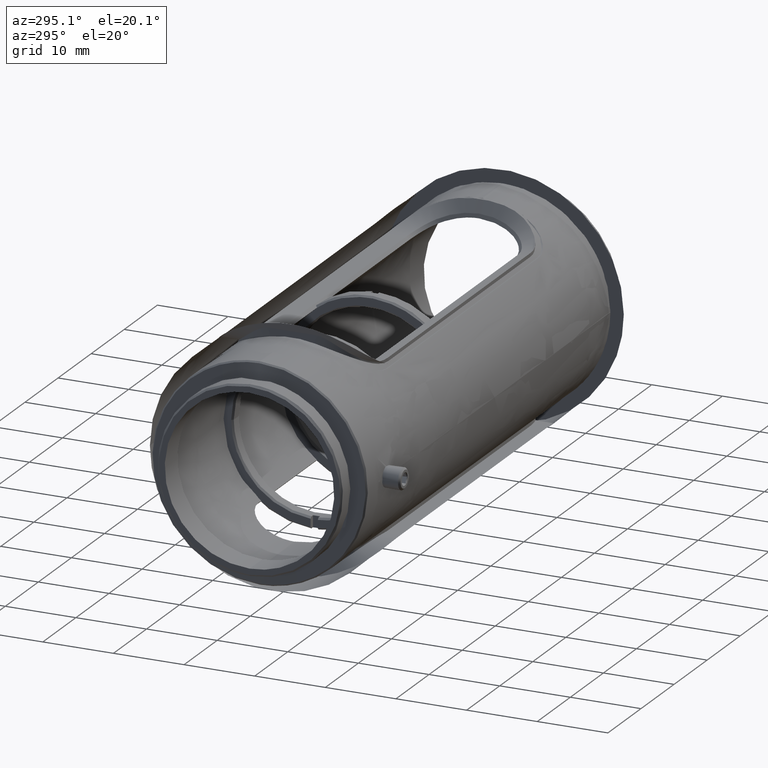
[diagram: clean part render]
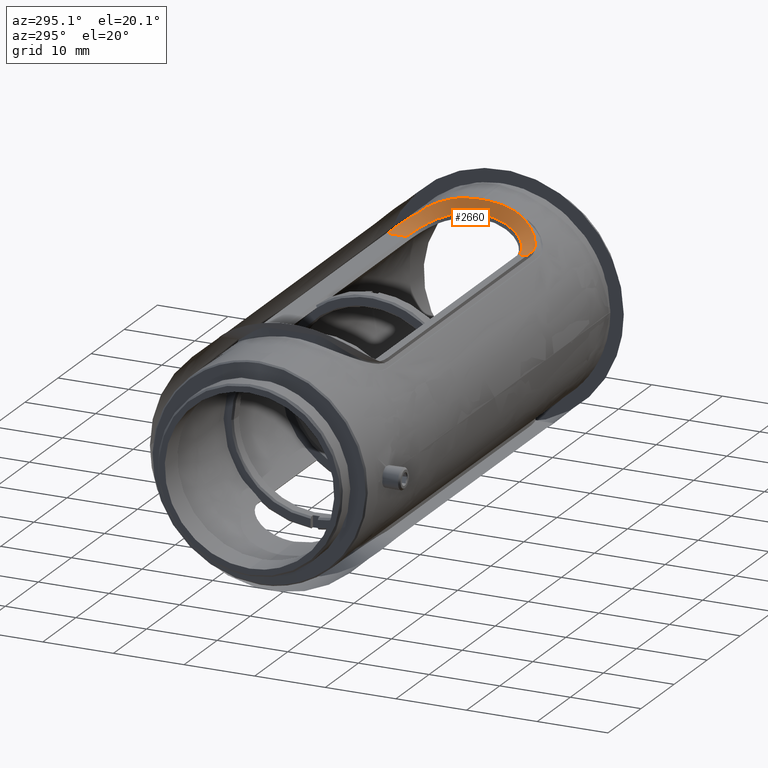
[diagram: same view with one face highlighted and labeled with its STEP entity id]
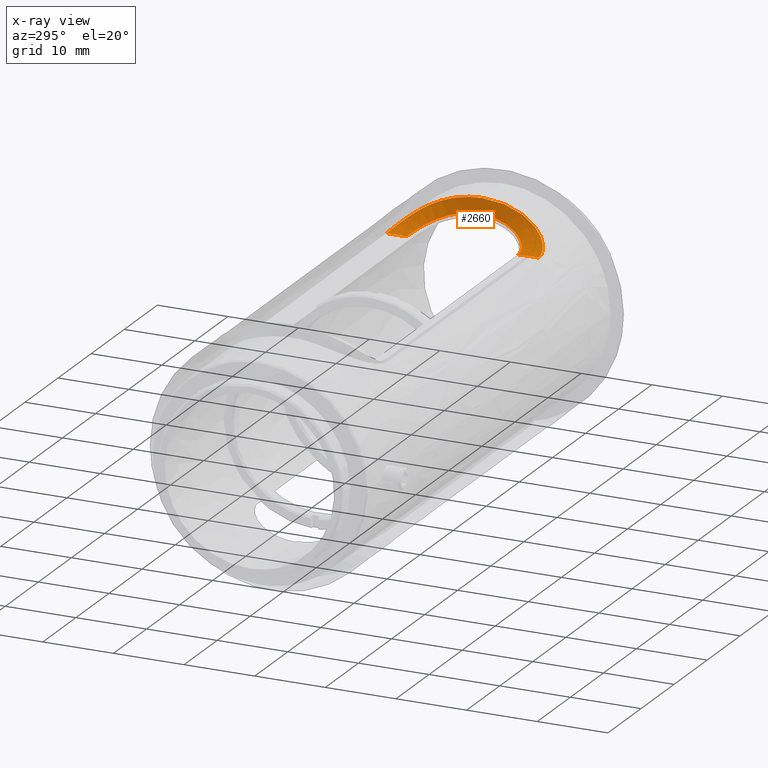
[diagram: x-ray of the same camera — body ghosted, the highlighted face saturated]
A machine part, auxiliary view. The second image highlights one B-rep face of the part: STEP entity #2660.
The next image is the same camera in x-ray: the body ghosted, the highlighted face saturated — about 0% of this face is hidden behind the body in this view.
In plain terms, the highlighted face is a freeform B-spline surface patch.
Its self-contained STEP definition (entity closure, byte-faithful):
#9 = B_SPLINE_CURVE_WITH_KNOTS ( 'NONE', 3,
 ( #10539, #1452, #12545, #7523, #5330, #3446, #5524, #7589, #2329, #12676, #323, #3581, #390, #7660, #8530, #11602, #10598, #4388, #258, #9600, #458, #8465, #10665, #1519, #528, #5592, #6330, #9668, #10416, #1263, #9410, #4324, #8399, #11480, #6395, #10478, #1325, #5394, #593, #7796, #2662, #10803, #11939, #4856, #8943, #4649, #4924, #13011, #5865, #1588, #7934, #6860, #6659, #3856, #798, #5657, #5792, #2794, #12810, #2863, #2726, #727, #8873, #10737, #6795, #9735, #10945, #3650 ),
 .UNSPECIFIED., .F., .F.,
 ( 4, 2, 2, 2, 2, 2, 2, 2, 1, 1, 2, 2, 2, 2, 2, 1, 1, 1, 2, 2, 2, 2, 1, 1, 1, 2, 2, 2, 2, 1, 1, 2, 2, 2, 2, 1, 1, 2, 2, 4 ),
 ( 0.000000000000000000, 0.03125000000000860423, 0.04687500000001290634, 0.06250000000001720846, 0.09375000000002445266, 0.1250000000000316969, 0.1875000000000461853, 0.2187500000000540124, 0.2343750000000573708, 0.2421875000000586198, 0.2460937500000592582, 0.2500000000000598965, 0.3750000000000592859, 0.4375000000000587308, 0.4687500000000584532, 0.4843750000000583422, 0.4921875000000583977, 0.4960937500000586198, 0.4980468750000586198, 0.5000000000000586198, 0.5625000000000515143, 0.5937500000000478506, 0.6093750000000461853, 0.6171875000000452971, 0.6210937500000446310, 0.6230468750000444089, 0.6250000000000441869, 0.6875000000000385247, 0.7187500000000356382, 0.7343750000000343059, 0.7421875000000337508, 0.7460937500000333067, 0.7500000000000329736, 0.8125000000000248690, 0.8437500000000207612, 0.8593750000000188738, 0.8671875000000178746, 0.8710937500000173195, 0.8750000000000168754, 1.000000000000000000 ),
 .UNSPECIFIED. ) ;
#24 = CARTESIAN_POINT ( 'NONE',  ( -35.85715672482449179, -7.920399482688959658, 10.80000000000000071 ) ) ;
#38 = CARTESIAN_POINT ( 'NONE',  ( -35.85715672482449179, -10.76673116595749846, 10.80000000000000071 ) ) ;
#98 = CARTESIAN_POINT ( 'NONE',  ( -33.62350186453222278, -7.353700017797577537, 11.19880303865978455 ) ) ;
#175 = CARTESIAN_POINT ( 'NONE',  ( -30.62746173576813646, -7.000652692583642533, 13.54819819456591823 ) ) ;
#258 = CARTESIAN_POINT ( 'NONE',  ( -32.56026629721694121, 9.753723990445555714, 11.72294957053906472 ) ) ;
#293 = CARTESIAN_POINT ( 'NONE',  ( -34.47945600330026394, -7.715195312910176462, 10.94923679904740155 ) ) ;
#304 = CARTESIAN_POINT ( 'NONE',  ( -29.98912825658609904, -3.992611619783430488, 14.72180498306280860 ) ) ;
#319 = CARTESIAN_POINT ( 'NONE',  ( -35.85715672482449179, 10.76673116595749846, 10.80000000000000071 ) ) ;
#323 = CARTESIAN_POINT ( 'NONE',  ( -34.18382189669605253, 10.53345627144988761, 11.02781208999312845 ) ) ;
#369 = CARTESIAN_POINT ( 'NONE',  ( -30.16109435763993218, -5.192482155384526621, 14.33908996651017631 ) ) ;
#390 = CARTESIAN_POINT ( 'NONE',  ( -33.48466079057303801, 10.28869932188704794, 11.25770140856272050 ) ) ;
#420 = CARTESIAN_POINT ( 'NONE',  ( -30.86884177743507962, -2.370289181328609551, 13.21591839520279343 ) ) ;
#434 = CARTESIAN_POINT ( 'NONE',  ( -30.20248907199493971, -5.414004091636546612, 14.25661801673994944 ) ) ;
#458 = CARTESIAN_POINT ( 'NONE',  ( -32.51737034142297489, 9.722076257060209059, 11.74920806341822477 ) ) ;
#493 = CARTESIAN_POINT ( 'NONE',  ( -31.31098937116117042, 4.283926217293768879, 12.71386805370390505 ) ) ;
#528 = CARTESIAN_POINT ( 'NONE',  ( -31.12756668390800385, 8.123848648775210179, 12.90945795517205852 ) ) ;
#562 = CARTESIAN_POINT ( 'NONE',  ( -31.21872886851276618, 3.978390428306354032, 12.81118519321894667 ) ) ;
#593 = CARTESIAN_POINT ( 'NONE',  ( -30.27935385163615223, 5.778787869644992803, 14.11290688250721814 ) ) ;
#626 = CARTESIAN_POINT ( 'NONE',  ( -30.78013705629827612, 1.543147204233465519, 13.33382016823485472 ) ) ;
#692 = CARTESIAN_POINT ( 'NONE',  ( -32.06733436917235025, 5.865405204143565143, 12.05429966396300934 ) ) ;
#727 = CARTESIAN_POINT ( 'NONE',  ( -29.83896139826274307, 1.985300807103978382, 15.12031043039478639 ) ) ;
#761 = CARTESIAN_POINT ( 'NONE',  ( -33.62796538876024499, 7.344390556220850463, 11.20422557169400513 ) ) ;
#782 = CARTESIAN_POINT ( 'NONE',  ( -35.85715672482449179, -10.89593193994899956, 10.80000000000000071 ) ) ;
#798 = CARTESIAN_POINT ( 'NONE',  ( -29.95773456681358837, 3.674634702761862659, 14.80067232179757575 ) ) ;
#932 = CARTESIAN_POINT ( 'NONE',  ( -29.80100149187070713, -0.6455925354530021032, 15.23948598039996405 ) ) ;
#964 = CARTESIAN_POINT ( 'NONE',  ( -34.08278532119883408, 7.573740386014266690, 11.04956895234672132 ) ) ;
#1055 = CARTESIAN_POINT ( 'NONE',  ( -29.79807263562407016, -0.3261250621713356335, 15.25000000000000000 ) ) ;
#1102 = CARTESIAN_POINT ( 'NONE',  ( -34.63980944696963604, -7.762208145228174594, 10.91551386478393226 ) ) ;
#1243 = CARTESIAN_POINT ( 'NONE',  ( -35.54712410416335899, -10.76673116595748780, 10.79999999999997939 ) ) ;
#1263 = CARTESIAN_POINT ( 'NONE',  ( -30.69388278246382740, 7.181037153468427192, 13.45355012348620960 ) ) ;
#1294 = CARTESIAN_POINT ( 'NONE',  ( -31.30709522392643152, -4.277395903929649634, 12.71668797671267725 ) ) ;
#1306 = CARTESIAN_POINT ( 'NONE',  ( -31.71909606422044448, -8.980552928177406358, 12.32772581974960069 ) ) ;
#1322 = ORIENTED_EDGE ( 'NONE', *, *, #6564, .F. ) ;
#1325 = CARTESIAN_POINT ( 'NONE',  ( -30.36389709321830921, 6.134374980580059145, 13.96261562062183437 ) ) ;
#1358 = CARTESIAN_POINT ( 'NONE',  ( -31.14649202662146976, -3.719074322741004579, 12.88951076109392346 ) ) ;
#1370 = CARTESIAN_POINT ( 'NONE',  ( -34.55498457761721198, -10.62629497558432234, 10.93823216899229145 ) ) ;
#1418 = CARTESIAN_POINT ( 'NONE',  ( -30.89218134917233627, 2.491209463811185465, 13.18755629310334854 ) ) ;
#1433 = CARTESIAN_POINT ( 'NONE',  ( -30.64377912470384757, -7.046082637588402697, 13.52462923859625299 ) ) ;
#1452 = CARTESIAN_POINT ( 'NONE',  ( -35.70202663681212130, 10.76673116595750024, 10.79999999999998117 ) ) ;
#1483 = CARTESIAN_POINT ( 'NONE',  ( -31.15631682973992511, 3.755994167132550299, 12.87856165097036154 ) ) ;
#1519 = CARTESIAN_POINT ( 'NONE',  ( -31.26967299134311062, 8.362404815501726318, 12.75557335694215055 ) ) ;
#1552 = CARTESIAN_POINT ( 'NONE',  ( -29.79807263562420161, 6.510175921697569855E-15, 15.25000000000000000 ) ) ;
#1553 = CARTESIAN_POINT ( 'NONE',  ( -31.17851775207766352, 3.837066761845259855, 12.85441171869901211 ) ) ;
#1588 = CARTESIAN_POINT ( 'NONE',  ( -29.99765200967037515, 4.050265613652460850, 14.70252388057682325 ) ) ;
#1623 = CARTESIAN_POINT ( 'NONE',  ( -31.83059771198738730, 5.481832940119963915, 12.23805133151730473 ) ) ;
#1696 = CARTESIAN_POINT ( 'NONE',  ( -32.05831422444565959, 5.851752087330441832, 12.06104106004246468 ) ) ;
#1715 = CARTESIAN_POINT ( 'NONE',  ( -30.62988927207201684, -10.89593193994900666, 12.52433214769860292 ) ) ;
#1764 = CARTESIAN_POINT ( 'NONE',  ( -33.64755945262103864, 7.355413002463617289, 11.19692243459906145 ) ) ;
#2051 = CARTESIAN_POINT ( 'NONE',  ( -29.83176592330514154, -1.815412769787138725, 15.14156881064284654 ) ) ;
#2151 = ORIENTED_EDGE ( 'NONE', *, *, #11089, .F. ) ;
#2247 = CARTESIAN_POINT ( 'NONE',  ( -34.33391230018471418, -10.57493926497712700, 10.98796756027568300 ) ) ;
#2257 =( BOUNDED_SURFACE ( )  B_SPLINE_SURFACE ( 1, 3, ( 
 ( #6645, #10722, #9720, #4634 ),
 ( #782, #6913, #1715, #7921 ) ),
 .UNSPECIFIED., .F., .F., .F. ) 
 B_SPLINE_SURFACE_WITH_KNOTS ( ( 2, 2 ),
 ( 4, 4 ),
 ( 0.000000000000000000, 1.000000000000000000 ),
 ( 0.000000000000000000, 1.000000000000000000 ),
 .UNSPECIFIED. ) 
 GEOMETRIC_REPRESENTATION_ITEM ( )  RATIONAL_B_SPLINE_SURFACE ( (
 ( 1.000000000000000000, 0.8691506124063309580, 0.8691506124063309580, 1.000000000000000000),
 ( 1.000000000000000000, 0.8691506124063309580, 0.8691506124063309580, 1.000000000000000000) ) ) 
 REPRESENTATION_ITEM ( '' )  SURFACE ( )  );
#2309 = CARTESIAN_POINT ( 'NONE',  ( -32.24553976024000690, -9.503611934089709834, 11.92673927083816565 ) ) ;
#2329 = CARTESIAN_POINT ( 'NONE',  ( -34.62682712609282021, 10.64273405275127438, 10.92231671850608343 ) ) ;
#2360 = CARTESIAN_POINT ( 'NONE',  ( -35.85715672482449179, -7.920399482688959658, 10.80000000000000071 ) ) ;
#2371 = CARTESIAN_POINT ( 'NONE',  ( -32.72856829272635792, -9.880842628837818609, 11.61801871035787315 ) ) ;
#2424 = CARTESIAN_POINT ( 'NONE',  ( -31.64856464970529970, 5.127158535910465886, 12.39299712113113117 ) ) ;
#2434 = CARTESIAN_POINT ( 'NONE',  ( -33.49084632400130346, -10.28518265736999204, 11.25980034908190497 ) ) ;
#2484 = CARTESIAN_POINT ( 'NONE',  ( -30.76203304657226667, 1.325949654953793466, 13.35840321239433592 ) ) ;
#2553 = CARTESIAN_POINT ( 'NONE',  ( -31.11764310170418213, 3.610433764262003020, 12.92104115470909242 ) ) ;
#2573 = FACE_OUTER_BOUND ( 'NONE', #8572, .T. ) ;
#2624 = CARTESIAN_POINT ( 'NONE',  ( -30.71513359936540510, 0.2982993635652825826, 13.42396348404586881 ) ) ;
#2660 = ADVANCED_FACE ( 'NONE', ( #2573 ), #2257, .T. ) ;
#2662 = CARTESIAN_POINT ( 'NONE',  ( -30.22869206718971213, 5.541437822611245956, 14.20766405469894345 ) ) ;
#2693 = CARTESIAN_POINT ( 'NONE',  ( -31.02413255730346009, -3.213578897400317214, 13.02772973350893793 ) ) ;
#2726 = CARTESIAN_POINT ( 'NONE',  ( -29.84517943342111579, 2.121510793477836554, 15.10206816658113560 ) ) ;
#2794 = CARTESIAN_POINT ( 'NONE',  ( -29.87278626317286623, 2.621243712397540282, 15.02381985738399095 ) ) ;
#2863 = CARTESIAN_POINT ( 'NONE',  ( -29.85105053031364264, 2.237554138789023206, 15.08515570720252086 ) ) ;
#2896 = CARTESIAN_POINT ( 'NONE',  ( -35.85715672482449179, 7.920399482688939230, 10.80000000000000071 ) ) ;
#2954 = CARTESIAN_POINT ( 'NONE',  ( -34.93604205539936203, 7.835085071979666971, 10.86327853855688730 ) ) ;
#3019 = CARTESIAN_POINT ( 'NONE',  ( -35.62407674995951368, 7.920504734407320058, 10.80010588402647720 ) ) ;
#3025 = CARTESIAN_POINT ( 'NONE',  ( -35.85715672482449179, -10.76673116595749846, 10.80000000000000071 ) ) ;
#3050 = CARTESIAN_POINT ( 'NONE',  ( -29.93325848341642370, -3.416122843089463235, 14.86278872708582277 ) ) ;
#3162 = CARTESIAN_POINT ( 'NONE',  ( -31.23457755528388091, -4.038239800777434496, 12.79378569657279918 ) ) ;
#3242 = CARTESIAN_POINT ( 'NONE',  ( -33.76267420351679505, -10.39505538272000962, 11.15844567073896343 ) ) ;
#3305 = CARTESIAN_POINT ( 'NONE',  ( -29.95380468390900930, -3.634572023783021244, 14.81056157396893092 ) ) ;
#3353 = CARTESIAN_POINT ( 'NONE',  ( -35.13334304987530743, -7.876806908087499615, 10.83256006086786094 ) ) ;
#3365 = CARTESIAN_POINT ( 'NONE',  ( -31.37853971922845986, -8.519006727025312031, 12.64868892664985367 ) ) ;
#3424 = CARTESIAN_POINT ( 'NONE',  ( -31.04673657699406775, -7.967080228312089396, 13.00417565375633444 ) ) ;
#3430 = EDGE_CURVE ( 'NONE', #7578, #11812, #8281, .T. ) ;
#3446 = CARTESIAN_POINT ( 'NONE',  ( -35.08192460644820443, 10.71739689389316119, 10.84896600310033499 ) ) ;
#3476 = CARTESIAN_POINT ( 'NONE',  ( -30.71616556165085399, 0.3625188667339137583, 13.42244826236138522 ) ) ;
#3488 = CARTESIAN_POINT ( 'NONE',  ( -32.45310952884955213, -9.673317062821217505, 11.78940844797193321 ) ) ;
#3545 = CARTESIAN_POINT ( 'NONE',  ( -30.98237661935525011, -3.009843939040957483, 13.07726827363012312 ) ) ;
#3581 = CARTESIAN_POINT ( 'NONE',  ( -33.75642161542476316, 10.39849449308707285, 11.15567901726378608 ) ) ;
#3617 = CARTESIAN_POINT ( 'NONE',  ( -30.74287764359521091, -1.038249538015264761, 13.38494649708546547 ) ) ;
#3650 = CARTESIAN_POINT ( 'NONE',  ( -29.79807263562420161, 6.510175921697569855E-15, 15.25000000000000000 ) ) ;
#3683 = CARTESIAN_POINT ( 'NONE',  ( -31.08500760920675532, 3.476808603488363847, 12.95785643276898647 ) ) ;
#3753 = CARTESIAN_POINT ( 'NONE',  ( -30.81898622073859784, 1.930760130369119976, 13.28199722994235721 ) ) ;
#3856 = CARTESIAN_POINT ( 'NONE',  ( -29.95991677730739866, 3.696627539710114263, 14.79519738218903946 ) ) ;
#3950 = CARTESIAN_POINT ( 'NONE',  ( -32.35235441091960240, 6.263108006666795013, 11.85128098139627895 ) ) ;
#3983 = CARTESIAN_POINT ( 'NONE',  ( -29.80978806061062869, -1.109975614847067193, 15.21034219870167270 ) ) ;
#4015 = CARTESIAN_POINT ( 'NONE',  ( -33.83291986401187046, 7.453560594553365171, 11.13122316296819747 ) ) ;
#4243 = CARTESIAN_POINT ( 'NONE',  ( -30.20113422679047233, -5.407010812962852242, 14.25927101215887838 ) ) ;
#4305 = CARTESIAN_POINT ( 'NONE',  ( -30.10907740876894678, -4.882927491837541822, 14.44787060752711483 ) ) ;
#4324 = CARTESIAN_POINT ( 'NONE',  ( -30.66069326296913644, 7.092295769981419085, 13.50044229548039887 ) ) ;
#4356 = CARTESIAN_POINT ( 'NONE',  ( -34.03213463545343842, -7.548488781076932774, 11.06614780882219051 ) ) ;
#4368 = CARTESIAN_POINT ( 'NONE',  ( -30.47847222646218412, -6.548667327108090852, 13.77311434757853270 ) ) ;
#4388 = CARTESIAN_POINT ( 'NONE',  ( -32.60244867362717969, 9.784328032441154122, 11.69746332332426775 ) ) ;
#4428 = CARTESIAN_POINT ( 'NONE',  ( -30.63870803825017575, -7.032040806679254352, 13.53193314107839385 ) ) ;
#4476 = CARTESIAN_POINT ( 'NONE',  ( -30.76305404217868400, -1.338496217471385696, 13.35715817022225949 ) ) ;
#4488 = ORIENTED_EDGE ( 'NONE', *, *, #3430, .F. ) ;
#4490 = CARTESIAN_POINT ( 'NONE',  ( -31.32528718697987102, -8.439059106202092764, 12.70223020013127702 ) ) ;
#4524 = EDGE_CURVE ( 'NONE', #12369, #5205, #5093, .T. ) ;
#4546 = CARTESIAN_POINT ( 'NONE',  ( -31.39071193959937744, 4.510917230552448309, 12.63370676780709090 ) ) ;
#4614 = CARTESIAN_POINT ( 'NONE',  ( -32.03953572445738018, 5.823189856189208591, 12.07512395701474262 ) ) ;
#4634 = CARTESIAN_POINT ( 'NONE',  ( -29.78380484225920100, 10.89593193994899956, 15.29611302649260018 ) ) ;
#4649 = CARTESIAN_POINT ( 'NONE',  ( -30.15198833774074316, 5.149236461605902093, 14.35710897361779104 ) ) ;
#4682 = CARTESIAN_POINT ( 'NONE',  ( -30.71411644315422862, 0.2259367353707200377, 13.42544685842727148 ) ) ;
#4750 = CARTESIAN_POINT ( 'NONE',  ( -30.85983657166529426, 2.267172374903769327, 13.22878688246517953 ) ) ;
#4768 = CARTESIAN_POINT ( 'NONE',  ( -35.85715672482449179, 7.920399482688939230, 10.80000000000000071 ) ) ;
#4856 = CARTESIAN_POINT ( 'NONE',  ( -30.20653967492111747, 5.430171491261465810, 14.25046794596626398 ) ) ;
#4924 = CARTESIAN_POINT ( 'NONE',  ( -30.10594821853100100, 4.870567763000682504, 14.45456797760869350 ) ) ;
#5023 = CARTESIAN_POINT ( 'NONE',  ( -33.57973358131000197, 7.316769399484351233, 11.22246931941150905 ) ) ;
#5093 = B_SPLINE_CURVE_WITH_KNOTS ( 'NONE', 1,
 ( #9596, #319 ),
 .UNSPECIFIED., .F., .F.,
 ( 2, 2 ),
 ( 0.000000000000000000, 1.000000000000000000 ),
 .UNSPECIFIED. ) ;
#5172 = CARTESIAN_POINT ( 'NONE',  ( -32.94482573347632126, -6.876641906882585253, 11.50190908317282634 ) ) ;
#5185 = CARTESIAN_POINT ( 'NONE',  ( -29.82825358397811399, -1.725126633285582578, 15.15218681206374818 ) ) ;
#5205 = VERTEX_POINT ( 'NONE', #11864 ) ;
#5249 = CARTESIAN_POINT ( 'NONE',  ( -34.18821670950642044, -10.53517271957018053, 11.02617546089140355 ) ) ;
#5330 = CARTESIAN_POINT ( 'NONE',  ( -35.23690257748398125, 10.73535237798271602, 10.83119886430853107 ) ) ;
#5363 = CARTESIAN_POINT ( 'NONE',  ( -31.15371804879430329, -3.746271832488738518, 12.88157189336475739 ) ) ;
#5374 = CARTESIAN_POINT ( 'NONE',  ( -32.96983547958396343, -10.02963232178256270, 11.48910490112935534 ) ) ;
#5394 = CARTESIAN_POINT ( 'NONE',  ( -30.32886455479231458, 5.993920274923032032, 14.02353519639640211 ) ) ;
#5428 = CARTESIAN_POINT ( 'NONE',  ( -31.17390138695181179, -3.820615976712017581, 12.85953165451142155 ) ) ;
#5441 = CARTESIAN_POINT ( 'NONE',  ( -34.62909681866387501, -10.64203094487790580, 10.92291538481149971 ) ) ;
#5489 = CARTESIAN_POINT ( 'NONE',  ( -30.71222463883975351, -0.1211170683900753275, 13.42812415849660468 ) ) ;
#5502 = CARTESIAN_POINT ( 'NONE',  ( -34.77816426456222842, -10.67075634170553577, 10.89485485132508202 ) ) ;
#5524 = CARTESIAN_POINT ( 'NONE',  ( -35.00243635727827751, 10.70660522731932573, 10.85962121358304167 ) ) ;
#5555 = CARTESIAN_POINT ( 'NONE',  ( -30.73261330149260218, -0.8566103843475407764, 13.39921703875431724 ) ) ;
#5592 = CARTESIAN_POINT ( 'NONE',  ( -30.93336423664423052, 7.741562772240714096, 13.13974262436663309 ) ) ;
#5625 = CARTESIAN_POINT ( 'NONE',  ( -31.09194066134898549, -3.505446614067776689, 12.95019240696869645 ) ) ;
#5657 = CARTESIAN_POINT ( 'NONE',  ( -29.92780658160691587, 3.369699915475094176, 14.87598785718498284 ) ) ;
#5691 = CARTESIAN_POINT ( 'NONE',  ( -31.92316073982653180, 5.641428548392738662, 12.16366023051546996 ) ) ;
#5758 = CARTESIAN_POINT ( 'NONE',  ( -30.78238856977360882, 1.568219702890927492, 13.33078111222064344 ) ) ;
#5792 = CARTESIAN_POINT ( 'NONE',  ( -29.90348868369017055, 3.074257774431343293, 14.94007248857866088 ) ) ;
#5830 = CARTESIAN_POINT ( 'NONE',  ( -34.28930653481782542, 7.654316628117465271, 10.99301510589794439 ) ) ;
#5865 = CARTESIAN_POINT ( 'NONE',  ( -30.02485645149121396, 4.280586796489291856, 14.63777704017896220 ) ) ;
#5897 = CARTESIAN_POINT ( 'NONE',  ( -35.85715672482449179, -7.920399482688959658, 10.80000000000000071 ) ) ;
#5971 = CARTESIAN_POINT ( 'NONE',  ( -34.71594047549302786, 7.784979490515317124, 10.89987874148365954 ) ) ;
#6034 = CARTESIAN_POINT ( 'NONE',  ( -33.63863282796555865, 7.350401398779427886, 11.20024414502214860 ) ) ;
#6122 = CARTESIAN_POINT ( 'NONE',  ( -29.86285704399600505, -2.476696177110417452, 15.05071442623280653 ) ) ;
#6235 = CARTESIAN_POINT ( 'NONE',  ( -35.48336081521356533, -7.920390320629246084, 10.79999999999998295 ) ) ;
#6252 = CARTESIAN_POINT ( 'NONE',  ( -35.85715672482449179, -10.76673116595749846, 10.80000000000000071 ) ) ;
#6313 = CARTESIAN_POINT ( 'NONE',  ( -32.09527913365709395, -9.369470735767988501, 12.03280997294023713 ) ) ;
#6330 = CARTESIAN_POINT ( 'NONE',  ( -30.87178958987113475, 7.610066653842771700, 13.21641149166956097 ) ) ;
#6361 = CARTESIAN_POINT ( 'NONE',  ( -32.26274391960360788, -6.180328781281446027, 11.90065777562521276 ) ) ;
#6373 = CARTESIAN_POINT ( 'NONE',  ( -30.54046330052680958, -6.745110113031764776, 13.67740089385509705 ) ) ;
#6395 = CARTESIAN_POINT ( 'NONE',  ( -30.55728841224504677, 6.808302474983025654, 13.64873426629441333 ) ) ;
#6437 = CARTESIAN_POINT ( 'NONE',  ( -31.54676220186354030, -8.765941901142985770, 12.48196299544459187 ) ) ;
#6471 = ORIENTED_EDGE ( 'NONE', *, *, #4524, .F. ) ;
#6489 = CARTESIAN_POINT ( 'NONE',  ( -30.76929939045051654, 1.419406681962676275, 13.34847855438524888 ) ) ;
#6501 = CARTESIAN_POINT ( 'NONE',  ( -33.90019738336985000, -10.44440366701972600, 11.11219337331223223 ) ) ;
#6554 = CARTESIAN_POINT ( 'NONE',  ( -30.75277495612242618, -1.194340893375842372, 13.37126079742441398 ) ) ;
#6564 = EDGE_CURVE ( 'NONE', #5205, #11702, #9, .T. ) ;
#6626 = CARTESIAN_POINT ( 'NONE',  ( -30.73107047787747348, 0.8862132552744645952, 13.40091870476443781 ) ) ;
#6645 = CARTESIAN_POINT ( 'NONE',  ( -35.85715672482449179, 10.89593193994899956, 10.80000000000000071 ) ) ;
#6659 = CARTESIAN_POINT ( 'NONE',  ( -29.96391668914102624, 3.736414776449298536, 14.78519953749721516 ) ) ;
#6692 = CARTESIAN_POINT ( 'NONE',  ( -30.72671578524412794, -0.7196563341504107481, 13.40751315585882608 ) ) ;
#6761 = CARTESIAN_POINT ( 'NONE',  ( -30.72272189580787582, 0.6226818924030063096, 13.41302561871546217 ) ) ;
#6795 = CARTESIAN_POINT ( 'NONE',  ( -29.83389549376382988, 1.866498498689725283, 15.13535627221293289 ) ) ;
#6828 = CARTESIAN_POINT ( 'NONE',  ( -33.78342875711865645, 7.428571906858649321, 11.14808521445607603 ) ) ;
#6860 = CARTESIAN_POINT ( 'NONE',  ( -29.96997378851322935, 3.795952058688264241, 14.77011083582583595 ) ) ;
#6893 = CARTESIAN_POINT ( 'NONE',  ( -32.13829051208190890, 5.970234756867740522, 12.00207636468310390 ) ) ;
#6913 = CARTESIAN_POINT ( 'NONE',  ( -32.95911806006867550, -10.89593193994900666, 10.80000000000000604 ) ) ;
#7019 = CARTESIAN_POINT ( 'NONE',  ( -33.71052164081873315, 7.390002498290712651, 11.17390923420944127 ) ) ;
#7068 = EDGE_CURVE ( 'NONE', #11812, #12369, #10207, .T. ) ;
#7113 = CARTESIAN_POINT ( 'NONE',  ( -29.81344913091891868, -1.262302831064700648, 15.19840876208853686 ) ) ;
#7313 = CARTESIAN_POINT ( 'NONE',  ( -30.19329735829758476, -5.366265817405515115, 14.27467073309369994 ) ) ;
#7378 = CARTESIAN_POINT ( 'NONE',  ( -31.26338022216345536, -8.342854304699178769, 12.76585126283988281 ) ) ;
#7437 = CARTESIAN_POINT ( 'NONE',  ( -30.43923503073435199, -6.414669476551503990, 13.83607878337097219 ) ) ;
#7489 = CARTESIAN_POINT ( 'NONE',  ( -31.16746244203217486, -3.797157442023498586, 12.86654121193365263 ) ) ;
#7501 = CARTESIAN_POINT ( 'NONE',  ( -30.08732687920454651, -4.740453690176802404, 14.49531560969210808 ) ) ;
#7523 = CARTESIAN_POINT ( 'NONE',  ( -35.31440423941658224, 10.74282761719425494, 10.82378056902849828 ) ) ;
#7555 = CARTESIAN_POINT ( 'NONE',  ( -30.74507592443703530, -1.075111613541155364, 13.38189664012167412 ) ) ;
#7567 = CARTESIAN_POINT ( 'NONE',  ( -30.32779400449663854, -6.004015360820595504, 14.02157415981637278 ) ) ;
#7578 = VERTEX_POINT ( 'NONE', #38 ) ;
#7589 = CARTESIAN_POINT ( 'NONE',  ( -34.77608127941319793, 10.67156931127110298, 10.89408931574340400 ) ) ;
#7623 = CARTESIAN_POINT ( 'NONE',  ( -30.71407663042452896, -0.3377253331564403771, 13.42537400255655733 ) ) ;
#7660 = CARTESIAN_POINT ( 'NONE',  ( -33.09587768089352977, 10.09275215536236736, 11.43269533467795007 ) ) ;
#7693 = CARTESIAN_POINT ( 'NONE',  ( -31.17433264785961100, 3.821936297744621402, 12.85894938035086277 ) ) ;
#7759 = CARTESIAN_POINT ( 'NONE',  ( -32.05503138537069674, 5.846770381330689048, 12.06349933988228429 ) ) ;
#7796 = CARTESIAN_POINT ( 'NONE',  ( -30.25535802617877579, 5.670109690329115715, 14.15709109254782661 ) ) ;
#7829 = CARTESIAN_POINT ( 'NONE',  ( -30.96795489914918065, 2.934971058222751061, 13.09434937051320524 ) ) ;
#7921 = CARTESIAN_POINT ( 'NONE',  ( -29.78380484225920100, -10.89593193994899956, 15.29611302649260018 ) ) ;
#7934 = CARTESIAN_POINT ( 'NONE',  ( -29.98450764173411187, 3.933854169054981309, 14.73427393703735788 ) ) ;
#8060 = CARTESIAN_POINT ( 'NONE',  ( -29.82360860102448186, -1.597564809500147121, 15.16640259386266365 ) ) ;
#8081 = ORIENTED_EDGE ( 'NONE', *, *, #7068, .F. ) ;
#8094 = CARTESIAN_POINT ( 'NONE',  ( -33.68038725679689094, 7.373689870105755162, 11.18479058986251040 ) ) ;
#8122 = CARTESIAN_POINT ( 'NONE',  ( -29.89389078938205913, -2.932540179145285197, 14.96618155279194085 ) ) ;
#8237 = CARTESIAN_POINT ( 'NONE',  ( -32.75783004811468402, -6.705156568336595235, 11.60410605916839444 ) ) ;
#8249 = CARTESIAN_POINT ( 'NONE',  ( -29.84608127832835223, -2.166251491709644483, 15.09869267408734927 ) ) ;
#8281 = B_SPLINE_CURVE_WITH_KNOTS ( 'NONE', 1,
 ( #3025, #24 ),
 .UNSPECIFIED., .F., .F.,
 ( 2, 2 ),
 ( 0.000000000000000000, 1.000000000000000000 ),
 .UNSPECIFIED. ) ;
#8317 = CARTESIAN_POINT ( 'NONE',  ( -30.18243476402207293, -5.308814864113738707, 14.29619342223604583 ) ) ;
#8382 = CARTESIAN_POINT ( 'NONE',  ( -31.11110506919287744, -8.085870658027943136, 12.93057455650659193 ) ) ;
#8399 = CARTESIAN_POINT ( 'NONE',  ( -30.65413187826686681, 7.074455090397627544, 13.50979965197261556 ) ) ;
#8431 = CARTESIAN_POINT ( 'NONE',  ( -33.37857915129555408, -7.201960451675752495, 11.29864505918069284 ) ) ;
#8446 = CARTESIAN_POINT ( 'NONE',  ( -30.86214086670994305, -7.599163270830900707, 13.22486388495912557 ) ) ;
#8465 = CARTESIAN_POINT ( 'NONE',  ( -32.09394661185197606, 9.403428199340542193, 12.01243807307485767 ) ) ;
#8507 = CARTESIAN_POINT ( 'NONE',  ( -31.21191269064724594, -8.258173158241961076, 12.82067536260961660 ) ) ;
#8530 = CARTESIAN_POINT ( 'NONE',  ( -32.97100276832429699, 10.02300268913123560, 11.49397736763218170 ) ) ;
#8559 = CARTESIAN_POINT ( 'NONE',  ( -30.71426259283952831, 0.2372998930069286083, 13.42523502189972717 ) ) ;
#8572 = EDGE_LOOP ( 'NONE', ( #8081, #4488, #2151, #1322, #6471 ) ) ;
#8574 = CARTESIAN_POINT ( 'NONE',  ( -32.32198321289492782, -9.569014961545830644, 11.87441143823287959 ) ) ;
#8629 = CARTESIAN_POINT ( 'NONE',  ( -30.78274676368959817, 1.572131642402970098, 13.33029846119730522 ) ) ;
#8698 = CARTESIAN_POINT ( 'NONE',  ( -32.05530643194805407, 5.847189063904240314, 12.06329295595927853 ) ) ;
#8769 = CARTESIAN_POINT ( 'NONE',  ( -32.05243939546857490, 5.842831768464383124, 12.06544226304827561 ) ) ;
#8838 = CARTESIAN_POINT ( 'NONE',  ( -30.74955815621525801, -1.145875453032778823, 13.37569654542835096 ) ) ;
#8873 = CARTESIAN_POINT ( 'NONE',  ( -29.83643186416978565, 1.926757200587810415, 15.12780533580335351 ) ) ;
#8943 = CARTESIAN_POINT ( 'NONE',  ( -30.20450359339149315, 5.419735442809211712, 14.25443946983924981 ) ) ;
#9107 = CARTESIAN_POINT ( 'NONE',  ( -33.60098600579537020, 7.329077675857588403, 11.21435553970574972 ) ) ;
#9196 = CARTESIAN_POINT ( 'NONE',  ( -29.94509217382329780, -3.543870159987636992, 14.83259691094235677 ) ) ;
#9248 = CARTESIAN_POINT ( 'NONE',  ( -31.14271629653437401, -3.704781347855839790, 12.89366591806401097 ) ) ;
#9260 = CARTESIAN_POINT ( 'NONE',  ( -29.83034725856068548, -1.779357592300175206, 15.14584814828348236 ) ) ;
#9315 = CARTESIAN_POINT ( 'NONE',  ( -34.17569357425723808, -7.608261638011794226, 11.02460485203057061 ) ) ;
#9380 = CARTESIAN_POINT ( 'NONE',  ( -32.01871467614780897, -5.814335719381315215, 12.08509439648784500 ) ) ;
#9410 = CARTESIAN_POINT ( 'NONE',  ( -30.67057236544024690, 7.119012160562309788, 13.48639586043858962 ) ) ;
#9457 = CARTESIAN_POINT ( 'NONE',  ( -30.57224265767734295, -6.842193560520858142, 13.62922769456396210 ) ) ;
#9516 = CARTESIAN_POINT ( 'NONE',  ( -30.61069025955985623, -6.953423095199936732, 13.57256833198125889 ) ) ;
#9565 = CARTESIAN_POINT ( 'NONE',  ( -30.80859262033119350, -1.906189487457230047, 13.29525039368592054 ) ) ;
#9578 = CARTESIAN_POINT ( 'NONE',  ( -29.95536799434933428, -3.650597245874557473, 14.80662248437907280 ) ) ;
#9596 = CARTESIAN_POINT ( 'NONE',  ( -35.85715672482449179, 7.920399482688939230, 10.80000000000000071 ) ) ;
#9600 = CARTESIAN_POINT ( 'NONE',  ( -32.53229219598481592, 9.733178941446624322, 11.74001303274298991 ) ) ;
#9630 = CARTESIAN_POINT ( 'NONE',  ( -31.20064239292348418, 3.916194659914537635, 12.83050135368107370 ) ) ;
#9668 = CARTESIAN_POINT ( 'NONE',  ( -30.78416687318368261, 7.406894635965419305, 13.33065822268251743 ) ) ;
#9703 = CARTESIAN_POINT ( 'NONE',  ( -30.71438319992540400, 0.2462891152601101585, 13.42505917118744385 ) ) ;
#9720 = CARTESIAN_POINT ( 'NONE',  ( -30.62988927207201684, 10.89593193994900666, 12.52433214769860292 ) ) ;
#9735 = CARTESIAN_POINT ( 'NONE',  ( -29.80976989542488909, 1.274941571110423277, 15.20759624644793639 ) ) ;
#9769 = CARTESIAN_POINT ( 'NONE',  ( -32.02661467860725963, 5.803240627192220558, 12.08489369432985683 ) ) ;
#9834 = CARTESIAN_POINT ( 'NONE',  ( -30.78467527188951181, 1.593262471701877514, 13.32769953145091790 ) ) ;
#9905 = CARTESIAN_POINT ( 'NONE',  ( -32.65390235322844603, 6.601493567210046542, 11.66385860668243346 ) ) ;
#10073 = CARTESIAN_POINT ( 'NONE',  ( -29.79807263562420161, 6.510175921697569855E-15, 15.25000000000000000 ) ) ;
#10135 = CARTESIAN_POINT ( 'NONE',  ( -29.82003905747386341, -1.486522403321420160, 15.17756190824581530 ) ) ;
#10202 = CARTESIAN_POINT ( 'NONE',  ( -29.90521372065818895, -3.082852679284295849, 14.93591602274986130 ) ) ;
#10207 = B_SPLINE_CURVE_WITH_KNOTS ( 'NONE', 3,
 ( #2360, #6235, #3353, #1102, #293, #9315, #4356, #98, #8431, #5172, #8237, #6361, #9380, #10508, #10448, #1294, #3162, #5428, #7489, #12386, #5363, #11570, #1358, #9248, #12320, #5625, #2693, #3545, #420, #9565, #4476, #11704, #6554, #12776, #8838, #11771, #7555, #3617, #5555, #6692, #7623, #5489, #11840, #10769, #10568, #12841, #4682, #8559, #9703, #2624, #3476, #6761, #6626, #2484, #6489, #12639, #626, #5758, #8629, #9834, #11631, #12911, #3753, #4750, #1418, #7829, #10629, #3683, #2553, #1483, #10699, #7693, #1553, #9630, #562, #493, #4546, #12710, #2424, #1623, #5691, #9769, #4614, #8769, #8698, #7759, #10840, #1696, #692, #10913, #11047, #6893, #11110, #3950, #9905, #12040, #10980, #12103, #5023, #9107, #761, #13172, #6034, #1764, #8094, #7019, #6828, #4015, #964, #5830, #5971, #2954, #12978, #3019, #2896 ),
 .UNSPECIFIED., .F., .F.,
 ( 4, 2, 2, 2, 2, 2, 2, 2, 2, 2, 1, 2, 2, 2, 2, 2, 2, 2, 2, 2, 2, 2, 1, 2, 2, 2, 2, 2, 2, 2, 2, 1, 1, 2, 2, 2, 1, 1, 2, 2, 2, 2, 2, 2, 1, 2, 2, 1, 1, 2, 2, 2, 2, 2, 2, 2, 1, 1, 2, 2, 2, 2, 4 ),
 ( 0.000000000000000000, 0.03125000000000131145, 0.04687500000000199840, 0.06250000000000267841, 0.09375000000000402456, 0.1250000000000053568, 0.1875000000000080491, 0.2500000000000107137, 0.3125000000000133782, 0.3203125000000134337, 0.3242187500000133227, 0.3261718750000132117, 0.3281250000000130451, 0.3437500000000118239, 0.3750000000000092704, 0.4375000000000041078, 0.4453125000000034417, 0.4472656250000032752, 0.4492187500000031641, 0.4531250000000028866, 0.4687500000000018874, 0.4999999999999999445, 0.5078124999999994449, 0.5097656249999993339, 0.5117187499999991118, 0.5156249999999988898, 0.5312499999999977796, 0.5624999999999955591, 0.5703124999999950040, 0.5712890624999948930, 0.5722656249999947820, 0.5742187499999946709, 0.5781249999999944489, 0.5937499999999931166, 0.6249999999999906741, 0.6562499999999882316, 0.6718749999999870104, 0.6757812499999865663, 0.6777343749999863443, 0.6796874999999861222, 0.6874999999999855671, 0.7187499999999832356, 0.7499999999999807931, 0.7812499999999784617, 0.7851562499999780176, 0.7856445312499781286, 0.7861328124999782396, 0.7871093749999785727, 0.7890624999999784617, 0.7968749999999767963, 0.8124999999999721334, 0.8437499999999619194, 0.8749999999999517053, 0.8906249999999465983, 0.8925781249999461542, 0.8930664062499462652, 0.8935546874999462652, 0.8945312499999469313, 0.8984374999999490408, 0.9062499999999529265, 0.9374999999999685807, 0.9687499999999843459, 1.000000000000000000 ),
 .UNSPECIFIED. ) ;
#10399 = CARTESIAN_POINT ( 'NONE',  ( -32.47871812279326065, -9.693009010420979621, 11.77322425207641210 ) ) ;
#10416 = CARTESIAN_POINT ( 'NONE',  ( -30.74154032820798932, 7.303827481965926793, 13.38759243480220107 ) ) ;
#10448 = CARTESIAN_POINT ( 'NONE',  ( -31.51270110643443445, -4.828096750970955142, 12.51540095116144258 ) ) ;
#10459 = CARTESIAN_POINT ( 'NONE',  ( -31.99860708757103112, -9.275595030363742666, 12.10541203463849413 ) ) ;
#10478 = CARTESIAN_POINT ( 'NONE',  ( -30.47507091746186347, 6.546299237329249898, 13.77676419852426726 ) ) ;
#10508 = CARTESIAN_POINT ( 'NONE',  ( -31.64532059906219175, -5.140406693944746586, 12.39077967584092299 ) ) ;
#10520 = CARTESIAN_POINT ( 'NONE',  ( -33.35816737204550719, -10.22517014216914966, 11.31441711041790654 ) ) ;
#10539 = CARTESIAN_POINT ( 'NONE',  ( -35.85715672482449179, 10.76673116595749846, 10.80000000000000071 ) ) ;
#10568 = CARTESIAN_POINT ( 'NONE',  ( -30.71386573307042056, 0.2052800883144364208, 13.42580753402654636 ) ) ;
#10578 = CARTESIAN_POINT ( 'NONE',  ( -30.14346220731616555, -5.090345469746402784, 14.37554327648974350 ) ) ;
#10598 = CARTESIAN_POINT ( 'NONE',  ( -32.70242279051876721, 9.854244998741622297, 11.63877287893208923 ) ) ;
#10629 = CARTESIAN_POINT ( 'NONE',  ( -31.01118138316419603, 3.153664285525985544, 13.04262268358679933 ) ) ;
#10665 = CARTESIAN_POINT ( 'NONE',  ( -31.73390594142620813, 9.027590619463151000, 12.30255954905386062 ) ) ;
#10699 = CARTESIAN_POINT ( 'NONE',  ( -31.16709524732203107, 3.795575126761404849, 12.86681561646799388 ) ) ;
#10705 = B_SPLINE_CURVE_WITH_KNOTS ( 'NONE', 3,
 ( #10073, #1055, #932, #3983, #7113, #10135, #8060, #5185, #9260, #2051, #12134, #8249, #6122, #8122, #10202, #12197, #3050, #9196, #12462, #3305, #9578, #304, #11523, #7501, #4305, #10578, #369, #8317, #7313, #11459, #4243, #434, #12398, #7567, #7437, #4368, #6373, #9457, #9516, #175, #4428, #1433, #11397, #8446, #3424, #8382, #8507, #7378, #4490, #12526, #12587, #3365, #6437, #1306, #10459, #6313, #2309, #8574, #11582, #3488, #10399, #2371, #5374, #10520, #2434, #3242, #6501, #5249, #2247, #1370, #5441, #5502, #12652, #11646, #1243, #6252 ),
 .UNSPECIFIED., .F., .F.,
 ( 4, 2, 2, 1, 1, 2, 2, 2, 2, 1, 1, 2, 2, 2, 2, 1, 1, 1, 2, 2, 2, 2, 1, 1, 2, 2, 2, 2, 1, 1, 2, 2, 2, 2, 1, 2, 2, 2, 2, 2, 2, 2, 2, 4 ),
 ( 0.000000000000000000, 0.06249999999999612810, 0.09374999999999421296, 0.1093749999999932693, 0.1171874999999927836, 0.1210937499999925338, 0.1249999999999923117, 0.1874999999999887035, 0.2187499999999869549, 0.2343749999999860667, 0.2421874999999856781, 0.2460937499999855393, 0.2499999999999853451, 0.3124999999999811817, 0.3437499999999792388, 0.3593749999999783507, 0.3671874999999779621, 0.3710937499999778511, 0.3730468749999777400, 0.3749999999999775735, 0.4374999999999761857, 0.4687499999999754086, 0.4843749999999749645, 0.4921874999999748534, 0.4960937499999747424, 0.4999999999999746869, 0.5624999999999716893, 0.5937499999999702460, 0.6093749999999691358, 0.6171874999999684697, 0.6210937499999679146, 0.6249999999999674705, 0.6874999999999708011, 0.7187499999999729106, 0.7343749999999735767, 0.7421874999999744649, 0.7499999999999752420, 0.8124999999999820144, 0.8437499999999847899, 0.8749999999999875655, 0.9062499999999902300, 0.9218749999999916733, 0.9374999999999930056, 1.000000000000000000 ),
 .UNSPECIFIED. ) ;
#10722 = CARTESIAN_POINT ( 'NONE',  ( -32.95911806006867550, 10.89593193994900666, 10.80000000000000604 ) ) ;
#10737 = CARTESIAN_POINT ( 'NONE',  ( -29.83477558324507584, 1.887691833749334247, 15.13272966548908371 ) ) ;
#10769 = CARTESIAN_POINT ( 'NONE',  ( -30.71331358908686937, 0.1558736093142966683, 13.42660018746972561 ) ) ;
#10803 = CARTESIAN_POINT ( 'NONE',  ( -30.21569138037298075, 5.476640347108511442, 14.23269483816032555 ) ) ;
#10840 = CARTESIAN_POINT ( 'NONE',  ( -32.05609860897319408, 5.848390640461529344, 12.06269987339180361 ) ) ;
#10913 = CARTESIAN_POINT ( 'NONE',  ( -32.07826509736666765, 5.881830125847168134, 12.04617188857675814 ) ) ;
#10945 = CARTESIAN_POINT ( 'NONE',  ( -29.79807263562420516, 0.6505952885886890913, 15.24999999999999467 ) ) ;
#10980 = CARTESIAN_POINT ( 'NONE',  ( -33.24429497627075847, 7.103668026160685933, 11.36055216353143216 ) ) ;
#11047 = CARTESIAN_POINT ( 'NONE',  ( -32.10994338094625533, 5.928811494387328906, 12.02280385284964481 ) ) ;
#11089 = EDGE_CURVE ( 'NONE', #11702, #7578, #10705, .T. ) ;
#11110 = CARTESIAN_POINT ( 'NONE',  ( -32.24768805952326289, 6.122953344332405123, 11.92422791004635307 ) ) ;
#11397 = CARTESIAN_POINT ( 'NONE',  ( -30.75042341493692533, -7.338459333322397526, 13.37183302247170147 ) ) ;
#11459 = CARTESIAN_POINT ( 'NONE',  ( -30.19799398250520639, -5.390733437096526970, 14.26543265168852415 ) ) ;
#11480 = CARTESIAN_POINT ( 'NONE',  ( -30.65042999106792365, 7.064328177396378194, 13.51509689175447093 ) ) ;
#11523 = CARTESIAN_POINT ( 'NONE',  ( -30.02559329891250428, -4.301219570599921660, 14.63408054708824579 ) ) ;
#11570 = CARTESIAN_POINT ( 'NONE',  ( -31.14936211813961364, -3.729898826180598537, 12.88635577134939680 ) ) ;
#11582 = CARTESIAN_POINT ( 'NONE',  ( -32.40039637459502586, -9.631927426469387044, 11.82324780262204023 ) ) ;
#11602 = CARTESIAN_POINT ( 'NONE',  ( -32.79076958545632436, 9.911623313275363500, 11.58984999705473307 ) ) ;
#11631 = CARTESIAN_POINT ( 'NONE',  ( -30.78858711730460840, 1.635514563623845286, 13.32243554907717709 ) ) ;
#11646 = CARTESIAN_POINT ( 'NONE',  ( -35.23757058127789321, -10.74303347205281156, 10.82377950474326944 ) ) ;
#11702 = VERTEX_POINT ( 'NONE', #1552 ) ;
#11704 = CARTESIAN_POINT ( 'NONE',  ( -30.75830566999165683, -1.274783364820438969, 13.36365332013626173 ) ) ;
#11771 = CARTESIAN_POINT ( 'NONE',  ( -30.74860939268832993, -1.131209736701279667, 13.37700735814677877 ) ) ;
#11812 = VERTEX_POINT ( 'NONE', #5897 ) ;
#11840 = CARTESIAN_POINT ( 'NONE',  ( -30.71293588106418326, 0.1028177436229769232, 13.42713653881453695 ) ) ;
#11864 = CARTESIAN_POINT ( 'NONE',  ( -35.85715672482449179, 10.76673116595749846, 10.80000000000000071 ) ) ;
#11939 = CARTESIAN_POINT ( 'NONE',  ( -30.21019086302534973, 5.448772032923661968, 14.24336626071062639 ) ) ;
#12040 = CARTESIAN_POINT ( 'NONE',  ( -32.85197542633189016, 6.800689640608688080, 11.54831015493973823 ) ) ;
#12103 = CARTESIAN_POINT ( 'NONE',  ( -33.39135254711338519, 7.205558022157066311, 11.29552037396745234 ) ) ;
#12134 = CARTESIAN_POINT ( 'NONE',  ( -29.83241501259972139, -1.831635793913732879, 15.13961702108031915 ) ) ;
#12197 = CARTESIAN_POINT ( 'NONE',  ( -29.92366564179350163, -3.305502445058573269, 14.88764321865328988 ) ) ;
#12320 = CARTESIAN_POINT ( 'NONE',  ( -31.11540787942407604, -3.600444837898840511, 12.92380662694669979 ) ) ;
#12369 = VERTEX_POINT ( 'NONE', #4768 ) ;
#12386 = CARTESIAN_POINT ( 'NONE',  ( -31.15822864665332403, -3.763052937834334255, 12.87663229002725629 ) ) ;
#12398 = CARTESIAN_POINT ( 'NONE',  ( -30.26186073493249751, -5.718676312868900879, 14.14069173088197573 ) ) ;
#12462 = CARTESIAN_POINT ( 'NONE',  ( -29.95030133582196541, -3.598330303891055681, 14.81940845501231863 ) ) ;
#12526 = CARTESIAN_POINT ( 'NONE',  ( -31.35221763862563904, -8.479733343861617811, 12.67504976183163734 ) ) ;
#12545 = CARTESIAN_POINT ( 'NONE',  ( -35.54694725445857983, 10.76076173313913209, 10.80596090125863640 ) ) ;
#12587 = CARTESIAN_POINT ( 'NONE',  ( -31.37025991645523604, -8.506725712404644923, 12.65694993676676638 ) ) ;
#12639 = CARTESIAN_POINT ( 'NONE',  ( -30.77903372027216733, 1.530696279014870154, 13.33531108493049366 ) ) ;
#12652 = CARTESIAN_POINT ( 'NONE',  ( -34.85122754989065896, -10.68345401876811351, 10.88239815772133134 ) ) ;
#12676 = CARTESIAN_POINT ( 'NONE',  ( -34.33161728329803708, 10.57396818247998738, 10.98890292489882192 ) ) ;
#12710 = CARTESIAN_POINT ( 'NONE',  ( -31.55927315269867961, 4.932134911216715878, 12.47345289027865434 ) ) ;
#12776 = CARTESIAN_POINT ( 'NONE',  ( -30.75168905940071440, -1.178212410996799520, 13.37275671061809135 ) ) ;
#12810 = CARTESIAN_POINT ( 'NONE',  ( -29.86351452739339507, 2.468600490315017382, 15.04967762304039702 ) ) ;
#12841 = CARTESIAN_POINT ( 'NONE',  ( -30.71409922521762681, 0.2247509121668072873, 13.42547179983874805 ) ) ;
#12911 = CARTESIAN_POINT ( 'NONE',  ( -30.80353687799152951, 1.790333743329298066, 13.30240716990880223 ) ) ;
#12978 = CARTESIAN_POINT ( 'NONE',  ( -35.39096401609465659, 7.903118122537431844, 10.81318621600810914 ) ) ;
#13011 = CARTESIAN_POINT ( 'NONE',  ( -30.04421368730285380, 4.430796614226545138, 14.59294890697838376 ) ) ;
#13172 = CARTESIAN_POINT ( 'NONE',  ( -33.63268758268483083, 7.347054329632712211, 11.20246150220563131 ) ) ;